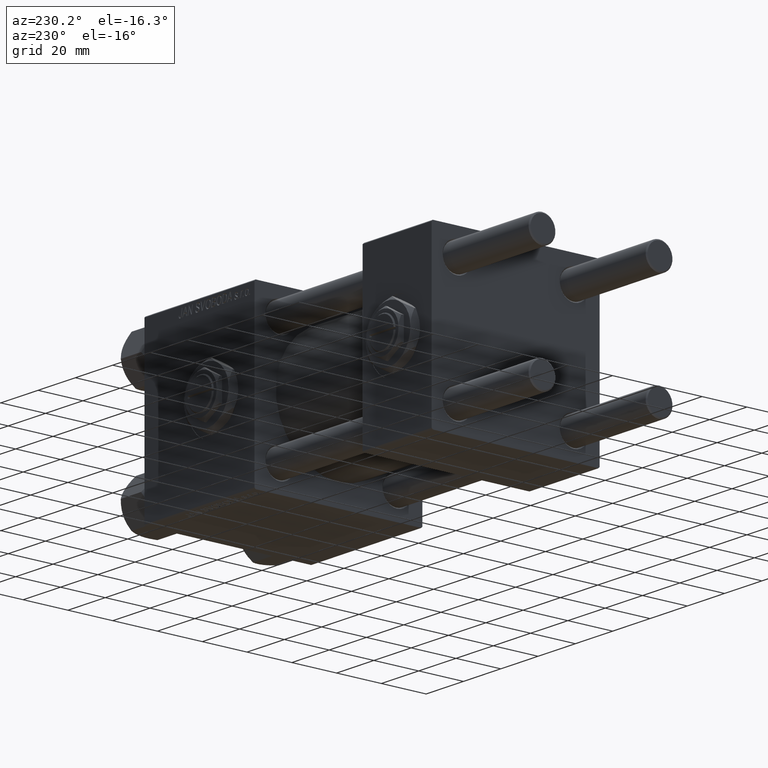
[diagram: clean part render]
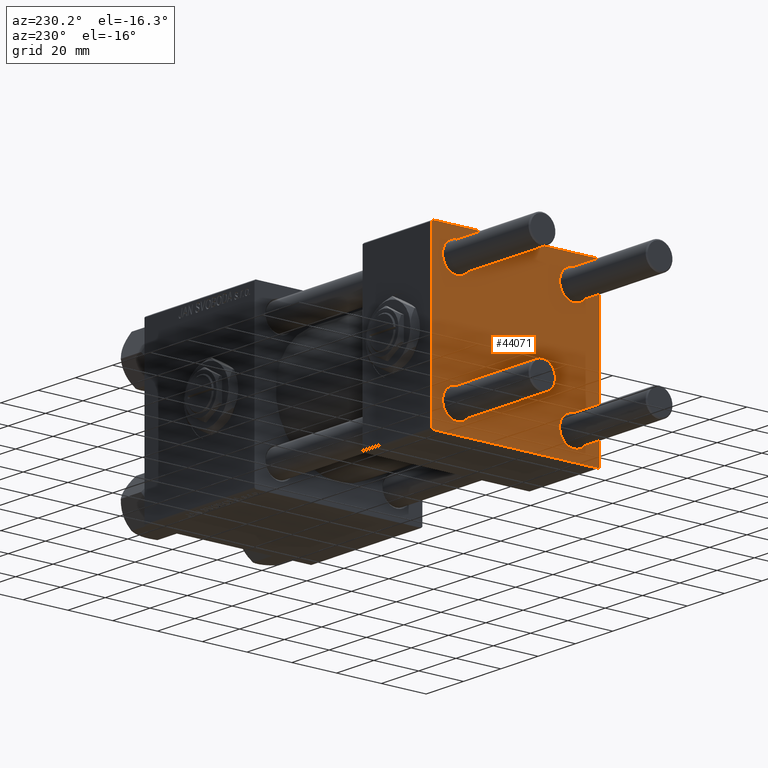
[diagram: same view with one face highlighted and labeled with its STEP entity id]
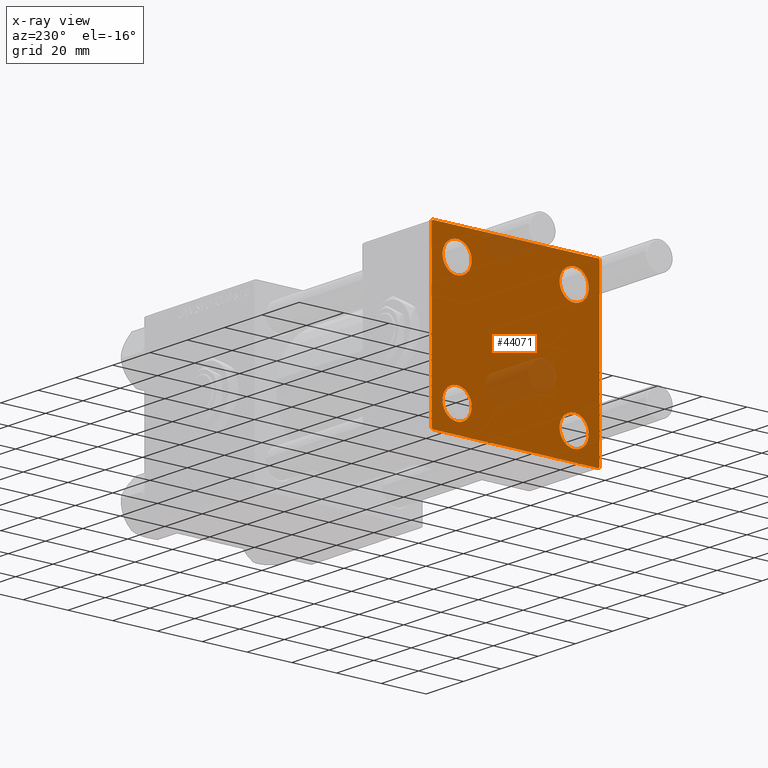
[diagram: x-ray of the same camera — body ghosted, the highlighted face saturated]
A machine part, auxiliary view. The second image highlights one B-rep face of the part: STEP entity #44071.
The next image is the same camera in x-ray: the body ghosted, the highlighted face saturated — about 10% of this face is hidden behind the body in this view.
In plain terms, the highlighted planar face has unit normal (-1, 0, 0).
Its self-contained STEP definition (entity closure, byte-faithful):
#31 = CARTESIAN_POINT ( 'NONE',  ( 0.000000000000000000, -37.24999999999975842, -37.25000000000027001 ) ) ;
#111 = DIRECTION ( 'NONE',  ( 0.000000000000000000, 0.000000000000000000, 1.000000000000000000 ) ) ;
#497 = CARTESIAN_POINT ( 'NONE',  ( 0.000000000000000000, 26.14999999999999858, -32.65000000000001990 ) ) ;
#775 = ORIENTED_EDGE ( 'NONE', *, *, #40269, .F. ) ;
#923 = VERTEX_POINT ( 'NONE', #15883 ) ;
#1624 = EDGE_CURVE ( 'NONE', #11037, #26799, #9746, .T. ) ;
#2061 = CARTESIAN_POINT ( 'NONE',  ( 0.000000000000000000, -26.14999999999999147, 26.15000000000000924 ) ) ;
#2257 = CIRCLE ( 'NONE', #50166, 6.500000000000023093 ) ;
#2900 = AXIS2_PLACEMENT_3D ( 'NONE', #27716, #32454, #48502 ) ;
#3086 = DIRECTION ( 'NONE',  ( -0.000000000000000000, -0.7071067811865474617, -0.7071067811865474617 ) ) ;
#3586 = FACE_BOUND ( 'NONE', #17111, .T. ) ;
#3652 = CARTESIAN_POINT ( 'NONE',  ( 0.000000000000000000, 37.49999999999999289, 37.50000000000000000 ) ) ;
#3846 = CARTESIAN_POINT ( 'NONE',  ( 0.000000000000000000, 0.000000000000000000, 0.000000000000000000 ) ) ;
#4142 = VERTEX_POINT ( 'NONE', #23609 ) ;
#4457 = VERTEX_POINT ( 'NONE', #39606 ) ;
#4571 = CIRCLE ( 'NONE', #2900, 6.500000000000023093 ) ;
#4647 = AXIS2_PLACEMENT_3D ( 'NONE', #2061, #27303, #26533 ) ;
#4912 = EDGE_CURVE ( 'NONE', #26799, #43034, #43880, .T. ) ;
#6328 = VECTOR ( 'NONE', #16837, 1000.000000000000000 ) ;
#6465 = VERTEX_POINT ( 'NONE', #12118 ) ;
#6526 = CARTESIAN_POINT ( 'NONE',  ( -0.000000000000000000, -37.25000000000000000, 37.25000000000000000 ) ) ;
#6535 = AXIS2_PLACEMENT_3D ( 'NONE', #7826, #19656, #28083 ) ;
#6757 = ORIENTED_EDGE ( 'NONE', *, *, #28326, .T. ) ;
#6925 = ORIENTED_EDGE ( 'NONE', *, *, #4912, .T. ) ;
#7746 = DIRECTION ( 'NONE',  ( 0.000000000000000000, 0.000000000000000000, 1.000000000000000000 ) ) ;
#7826 = CARTESIAN_POINT ( 'NONE',  ( 0.000000000000000000, -26.14999999999999147, -26.15000000000000924 ) ) ;
#7893 = ORIENTED_EDGE ( 'NONE', *, *, #18387, .F. ) ;
#7993 = DIRECTION ( 'NONE',  ( 0.000000000000000000, 0.000000000000000000, 1.000000000000000000 ) ) ;
#9746 = LINE ( 'NONE', #25546, #12948 ) ;
#10794 = AXIS2_PLACEMENT_3D ( 'NONE', #36174, #11425, #111 ) ;
#11037 = VERTEX_POINT ( 'NONE', #24497 ) ;
#11425 = DIRECTION ( 'NONE',  ( 1.000000000000000000, -0.000000000000000000, 0.000000000000000000 ) ) ;
#11921 = EDGE_CURVE ( 'NONE', #4142, #44153, #24757, .T. ) ;
#12118 = CARTESIAN_POINT ( 'NONE',  ( 0.000000000000000000, 26.14999999999999858, 32.65000000000002700 ) ) ;
#12948 = VECTOR ( 'NONE', #45799, 1000.000000000000000 ) ;
#13408 = ORIENTED_EDGE ( 'NONE', *, *, #25891, .T. ) ;
#13817 = CARTESIAN_POINT ( 'NONE',  ( 0.000000000000000000, 26.14999999999999858, 19.64999999999998437 ) ) ;
#13943 = EDGE_CURVE ( 'NONE', #4457, #50373, #19953, .T. ) ;
#14168 = DIRECTION ( 'NONE',  ( -0.000000000000000000, 0.7071067811865474617, 0.7071067811865474617 ) ) ;
#14425 = LINE ( 'NONE', #6526, #36408 ) ;
#15243 = DIRECTION ( 'NONE',  ( 0.000000000000000000, -1.000000000000000000, -9.251858538542971581E-17 ) ) ;
#15690 = FACE_BOUND ( 'NONE', #48020, .T. ) ;
#15883 = CARTESIAN_POINT ( 'NONE',  ( 0.000000000000000000, -37.00000000000000711, 37.49999999999999289 ) ) ;
#16217 = CARTESIAN_POINT ( 'NONE',  ( 0.000000000000000000, -37.50000000000000000, -37.00000000000003553 ) ) ;
#16837 = DIRECTION ( 'NONE',  ( 0.000000000000000000, -1.000000000000000000, -9.251858538542972814E-17 ) ) ;
#17111 = EDGE_LOOP ( 'NONE', ( #30604, #21000 ) ) ;
#17366 = AXIS2_PLACEMENT_3D ( 'NONE', #35379, #42997, #46946 ) ;
#17604 = VERTEX_POINT ( 'NONE', #13817 ) ;
#18295 = EDGE_LOOP ( 'NONE', ( #34836, #20354 ) ) ;
#18387 = EDGE_CURVE ( 'NONE', #44038, #923, #47877, .T. ) ;
#19111 = FACE_OUTER_BOUND ( 'NONE', #46454, .T. ) ;
#19656 = DIRECTION ( 'NONE',  ( 1.000000000000000000, -0.000000000000000000, 0.000000000000000000 ) ) ;
#19739 = CARTESIAN_POINT ( 'NONE',  ( 0.000000000000000000, -26.14999999999999147, -32.65000000000002700 ) ) ;
#19828 = CARTESIAN_POINT ( 'NONE',  ( 0.000000000000000000, 37.24999999999999289, 37.24999999999999289 ) ) ;
#19953 = CIRCLE ( 'NONE', #6535, 6.500000000000015987 ) ;
#20354 = ORIENTED_EDGE ( 'NONE', *, *, #34488, .T. ) ;
#20663 = CARTESIAN_POINT ( 'NONE',  ( 0.000000000000000000, -26.14999999999999147, 19.64999999999999147 ) ) ;
#21000 = ORIENTED_EDGE ( 'NONE', *, *, #34557, .T. ) ;
#21644 = CARTESIAN_POINT ( 'NONE',  ( 0.000000000000000000, -26.14999999999999147, -26.15000000000000924 ) ) ;
#22115 = CARTESIAN_POINT ( 'NONE',  ( 0.000000000000000000, -37.50000000000000711, 37.49999999999999289 ) ) ;
#22806 = FACE_BOUND ( 'NONE', #18295, .T. ) ;
#23609 = CARTESIAN_POINT ( 'NONE',  ( 0.000000000000000000, -37.00000000000002132, -37.50000000000000711 ) ) ;
#24021 = EDGE_CURVE ( 'NONE', #42308, #923, #14425, .T. ) ;
#24253 = AXIS2_PLACEMENT_3D ( 'NONE', #51954, #35110, #7993 ) ;
#24497 = CARTESIAN_POINT ( 'NONE',  ( 0.000000000000000000, 37.49999999999999289, 37.00000000000000000 ) ) ;
#24757 = LINE ( 'NONE', #31, #47650 ) ;
#25546 = CARTESIAN_POINT ( 'NONE',  ( 0.000000000000000000, 37.49999999999999289, 37.50000000000000000 ) ) ;
#25864 = DIRECTION ( 'NONE',  ( 1.000000000000000000, -0.000000000000000000, 0.000000000000000000 ) ) ;
#25891 = EDGE_CURVE ( 'NONE', #17604, #6465, #4571, .T. ) ;
#26533 = DIRECTION ( 'NONE',  ( 0.000000000000000000, 0.000000000000000000, 1.000000000000000000 ) ) ;
#26799 = VERTEX_POINT ( 'NONE', #41738 ) ;
#27061 = ORIENTED_EDGE ( 'NONE', *, *, #34390, .T. ) ;
#27266 = PLANE ( 'NONE',  #51181 ) ;
#27303 = DIRECTION ( 'NONE',  ( 1.000000000000000000, -0.000000000000000000, 0.000000000000000000 ) ) ;
#27336 = CARTESIAN_POINT ( 'NONE',  ( 0.000000000000000000, 26.14999999999999858, -19.64999999999998792 ) ) ;
#27716 = CARTESIAN_POINT ( 'NONE',  ( 0.000000000000000000, 26.14999999999999858, 26.15000000000000213 ) ) ;
#28083 = DIRECTION ( 'NONE',  ( 0.000000000000000000, 0.000000000000000000, 1.000000000000000000 ) ) ;
#28326 = EDGE_CURVE ( 'NONE', #43034, #4142, #32638, .T. ) ;
#28609 = EDGE_CURVE ( 'NONE', #47398, #29831, #43296, .T. ) ;
#29831 = VERTEX_POINT ( 'NONE', #34998 ) ;
#30604 = ORIENTED_EDGE ( 'NONE', *, *, #13943, .T. ) ;
#30629 = DIRECTION ( 'NONE',  ( 0.000000000000000000, 0.7071067811865474617, -0.7071067811865474617 ) ) ;
#31228 = ORIENTED_EDGE ( 'NONE', *, *, #24021, .T. ) ;
#31780 = CARTESIAN_POINT ( 'NONE',  ( 0.000000000000000000, 37.24999999999998579, -37.24999999999998579 ) ) ;
#32454 = DIRECTION ( 'NONE',  ( 1.000000000000000000, -0.000000000000000000, 0.000000000000000000 ) ) ;
#32488 = VECTOR ( 'NONE', #30629, 1000.000000000000114 ) ;
#32638 = LINE ( 'NONE', #44213, #6328 ) ;
#33495 = CIRCLE ( 'NONE', #10794, 6.500000000000023093 ) ;
#33536 = VECTOR ( 'NONE', #42892, 1000.000000000000000 ) ;
#34390 = EDGE_CURVE ( 'NONE', #44038, #11037, #35897, .T. ) ;
#34488 = EDGE_CURVE ( 'NONE', #39503, #38697, #50991, .T. ) ;
#34557 = EDGE_CURVE ( 'NONE', #50373, #4457, #51831, .T. ) ;
#34836 = ORIENTED_EDGE ( 'NONE', *, *, #38119, .T. ) ;
#34998 = CARTESIAN_POINT ( 'NONE',  ( 0.000000000000000000, -26.14999999999999147, 32.65000000000003411 ) ) ;
#35110 = DIRECTION ( 'NONE',  ( 1.000000000000000000, -0.000000000000000000, 0.000000000000000000 ) ) ;
#35178 = CIRCLE ( 'NONE', #24253, 6.500000000000015987 ) ;
#35379 = CARTESIAN_POINT ( 'NONE',  ( 0.000000000000000000, 26.14999999999999858, -26.15000000000000213 ) ) ;
#35815 = EDGE_CURVE ( 'NONE', #29831, #47398, #2257, .T. ) ;
#35897 = LINE ( 'NONE', #19828, #32488 ) ;
#36132 = VECTOR ( 'NONE', #15243, 1000.000000000000000 ) ;
#36174 = CARTESIAN_POINT ( 'NONE',  ( 0.000000000000000000, 26.14999999999999858, 26.15000000000000213 ) ) ;
#36408 = VECTOR ( 'NONE', #14168, 1000.000000000000114 ) ;
#36436 = CARTESIAN_POINT ( 'NONE',  ( 0.000000000000000000, -26.14999999999999147, 26.15000000000000924 ) ) ;
#36611 = DIRECTION ( 'NONE',  ( 0.000000000000000000, -0.7071067811865524577, 0.7071067811865426878 ) ) ;
#38119 = EDGE_CURVE ( 'NONE', #38697, #39503, #35178, .T. ) ;
#38343 = CARTESIAN_POINT ( 'NONE',  ( 0.000000000000000000, 36.99999999999999289, 37.50000000000000000 ) ) ;
#38697 = VERTEX_POINT ( 'NONE', #27336 ) ;
#38858 = DIRECTION ( 'NONE',  ( -1.000000000000000000, 0.000000000000000000, -0.000000000000000000 ) ) ;
#38983 = EDGE_CURVE ( 'NONE', #6465, #17604, #33495, .T. ) ;
#39503 = VERTEX_POINT ( 'NONE', #497 ) ;
#39606 = CARTESIAN_POINT ( 'NONE',  ( 0.000000000000000000, -26.14999999999999147, -19.64999999999999503 ) ) ;
#40021 = EDGE_LOOP ( 'NONE', ( #50922, #13408 ) ) ;
#40269 = EDGE_CURVE ( 'NONE', #42308, #44153, #51058, .T. ) ;
#41738 = CARTESIAN_POINT ( 'NONE',  ( 0.000000000000000000, 37.49999999999999289, -36.99999999999998579 ) ) ;
#42308 = VERTEX_POINT ( 'NONE', #51157 ) ;
#42887 = ORIENTED_EDGE ( 'NONE', *, *, #1624, .T. ) ;
#42892 = DIRECTION ( 'NONE',  ( 0.000000000000000000, 9.251858538542971581E-17, -1.000000000000000000 ) ) ;
#42997 = DIRECTION ( 'NONE',  ( 1.000000000000000000, -0.000000000000000000, 0.000000000000000000 ) ) ;
#43034 = VERTEX_POINT ( 'NONE', #45927 ) ;
#43296 = CIRCLE ( 'NONE', #4647, 6.500000000000023093 ) ;
#43403 = AXIS2_PLACEMENT_3D ( 'NONE', #21644, #25864, #49811 ) ;
#43533 = DIRECTION ( 'NONE',  ( 1.000000000000000000, -0.000000000000000000, 0.000000000000000000 ) ) ;
#43591 = FACE_BOUND ( 'NONE', #40021, .T. ) ;
#43880 = LINE ( 'NONE', #31780, #44159 ) ;
#44038 = VERTEX_POINT ( 'NONE', #38343 ) ;
#44071 = ADVANCED_FACE ( 'NONE', ( #15690, #3586, #22806, #43591, #19111 ), #27266, .T. ) ;
#44153 = VERTEX_POINT ( 'NONE', #16217 ) ;
#44159 = VECTOR ( 'NONE', #3086, 1000.000000000000114 ) ;
#44213 = CARTESIAN_POINT ( 'NONE',  ( 0.000000000000000000, 37.49999999999999289, -37.50000000000000000 ) ) ;
#45799 = DIRECTION ( 'NONE',  ( 0.000000000000000000, 0.000000000000000000, -1.000000000000000000 ) ) ;
#45927 = CARTESIAN_POINT ( 'NONE',  ( 0.000000000000000000, 36.99999999999997868, -37.50000000000000000 ) ) ;
#46454 = EDGE_LOOP ( 'NONE', ( #42887, #6925, #6757, #49118, #775, #31228, #7893, #27061 ) ) ;
#46946 = DIRECTION ( 'NONE',  ( 0.000000000000000000, 0.000000000000000000, 1.000000000000000000 ) ) ;
#47398 = VERTEX_POINT ( 'NONE', #20663 ) ;
#47650 = VECTOR ( 'NONE', #36611, 1000.000000000000000 ) ;
#47734 = ORIENTED_EDGE ( 'NONE', *, *, #35815, .T. ) ;
#47877 = LINE ( 'NONE', #3652, #36132 ) ;
#48020 = EDGE_LOOP ( 'NONE', ( #47734, #51677 ) ) ;
#48502 = DIRECTION ( 'NONE',  ( 0.000000000000000000, 0.000000000000000000, 1.000000000000000000 ) ) ;
#49118 = ORIENTED_EDGE ( 'NONE', *, *, #11921, .T. ) ;
#49811 = DIRECTION ( 'NONE',  ( 0.000000000000000000, 0.000000000000000000, 1.000000000000000000 ) ) ;
#50166 = AXIS2_PLACEMENT_3D ( 'NONE', #36436, #43533, #7746 ) ;
#50373 = VERTEX_POINT ( 'NONE', #19739 ) ;
#50922 = ORIENTED_EDGE ( 'NONE', *, *, #38983, .T. ) ;
#50991 = CIRCLE ( 'NONE', #17366, 6.500000000000015987 ) ;
#51058 = LINE ( 'NONE', #22115, #33536 ) ;
#51157 = CARTESIAN_POINT ( 'NONE',  ( 0.000000000000000000, -37.50000000000000711, 36.99999999999999289 ) ) ;
#51181 = AXIS2_PLACEMENT_3D ( 'NONE', #3846, #38858, #52026 ) ;
#51677 = ORIENTED_EDGE ( 'NONE', *, *, #28609, .T. ) ;
#51831 = CIRCLE ( 'NONE', #43403, 6.500000000000015987 ) ;
#51954 = CARTESIAN_POINT ( 'NONE',  ( 0.000000000000000000, 26.14999999999999858, -26.15000000000000213 ) ) ;
#52026 = DIRECTION ( 'NONE',  ( -0.000000000000000000, 0.000000000000000000, 1.000000000000000000 ) ) ;